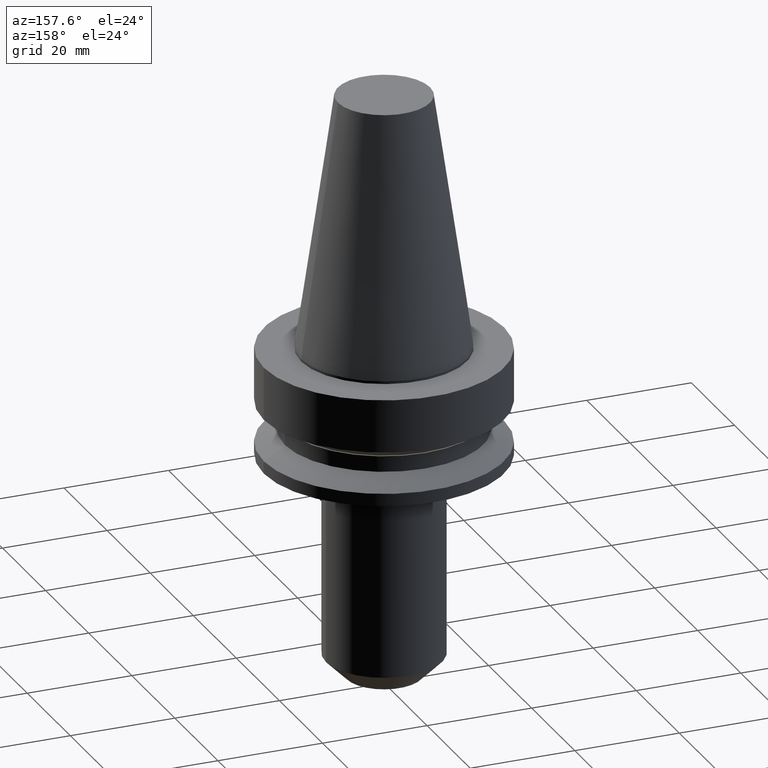
[diagram: clean part render]
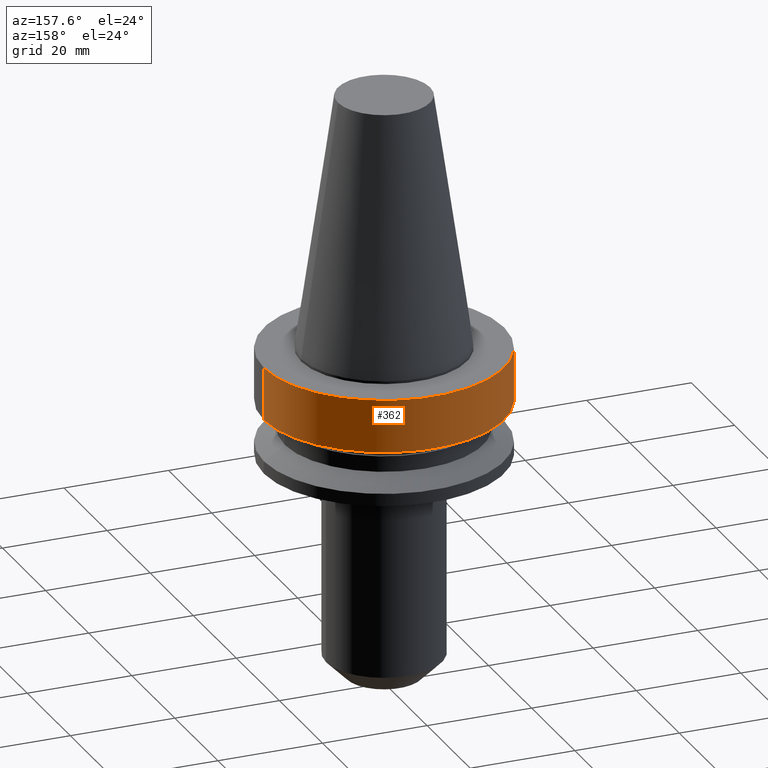
[diagram: same view with one face highlighted and labeled with its STEP entity id]
A machine part, auxiliary view. The second image highlights one B-rep face of the part: STEP entity #362.
In plain terms, the highlighted cylindrical surface (partial cylindrical patch) has radius 23 mm, axis along (-0, -0, 1).
Its self-contained STEP definition (entity closure, byte-faithful):
#5 = CARTESIAN_POINT ( 'NONE',  ( 23.00000000000000711, 0.000000000000000000, -10.60014200631680126 ) ) ;
#24 = CIRCLE ( 'NONE', #332, 23.00000000000000000 ) ;
#41 = DIRECTION ( 'NONE',  ( -0.000000000000000000, -0.000000000000000000, 1.000000000000000000 ) ) ;
#84 = CARTESIAN_POINT ( 'NONE',  ( 0.000000000000000000, 0.000000000000000000, 48.39999999999998437 ) ) ;
#85 = VERTEX_POINT ( 'NONE', #775 ) ;
#91 = CARTESIAN_POINT ( 'NONE',  ( -23.00000000000000355, 2.816687638038912746E-15, 48.39999999999998437 ) ) ;
#93 = LINE ( 'NONE', #212, #174 ) ;
#117 = CARTESIAN_POINT ( 'NONE',  ( -23.00000000000000000, 2.816687638038912746E-15, -0.5000000000000004441 ) ) ;
#156 = FACE_OUTER_BOUND ( 'NONE', #411, .T. ) ;
#174 = VECTOR ( 'NONE', #692, 1000.000000000000000 ) ;
#212 = CARTESIAN_POINT ( 'NONE',  ( 23.00000000000000355, 0.000000000000000000, 48.39999999999998437 ) ) ;
#214 = VERTEX_POINT ( 'NONE', #5 ) ;
#251 = ORIENTED_EDGE ( 'NONE', *, *, #772, .F. ) ;
#262 = CARTESIAN_POINT ( 'NONE',  ( 0.000000000000000000, 0.000000000000000000, -0.5000000000000004441 ) ) ;
#266 = ORIENTED_EDGE ( 'NONE', *, *, #572, .T. ) ;
#268 = DIRECTION ( 'NONE',  ( -0.000000000000000000, -0.000000000000000000, 1.000000000000000000 ) ) ;
#275 = DIRECTION ( 'NONE',  ( 1.000000000000000000, 0.000000000000000000, 0.000000000000000000 ) ) ;
#281 = EDGE_CURVE ( 'NONE', #85, #573, #320, .T. ) ;
#314 = CIRCLE ( 'NONE', #474, 23.00000000000000711 ) ;
#320 = LINE ( 'NONE', #91, #570 ) ;
#322 = EDGE_CURVE ( 'NONE', #524, #573, #24, .T. ) ;
#331 = DIRECTION ( 'NONE',  ( 1.000000000000000000, 0.000000000000000000, 0.000000000000000000 ) ) ;
#332 = AXIS2_PLACEMENT_3D ( 'NONE', #262, #686, #747 ) ;
#352 = CARTESIAN_POINT ( 'NONE',  ( 0.000000000000000000, 0.000000000000000000, -10.60014200631680126 ) ) ;
#362 = ADVANCED_FACE ( 'NONE', ( #156 ), #627, .T. ) ;
#404 = CARTESIAN_POINT ( 'NONE',  ( 23.00000000000000000, 0.000000000000000000, -0.5000000000000004441 ) ) ;
#411 = EDGE_LOOP ( 'NONE', ( #266, #545, #652, #251 ) ) ;
#474 = AXIS2_PLACEMENT_3D ( 'NONE', #352, #41, #275 ) ;
#524 = VERTEX_POINT ( 'NONE', #404 ) ;
#545 = ORIENTED_EDGE ( 'NONE', *, *, #281, .T. ) ;
#570 = VECTOR ( 'NONE', #268, 1000.000000000000000 ) ;
#572 = EDGE_CURVE ( 'NONE', #214, #85, #314, .T. ) ;
#573 = VERTEX_POINT ( 'NONE', #117 ) ;
#627 = CYLINDRICAL_SURFACE ( 'NONE', #658, 23.00000000000000355 ) ;
#652 = ORIENTED_EDGE ( 'NONE', *, *, #322, .F. ) ;
#658 = AXIS2_PLACEMENT_3D ( 'NONE', #84, #681, #331 ) ;
#681 = DIRECTION ( 'NONE',  ( -0.000000000000000000, -0.000000000000000000, 1.000000000000000000 ) ) ;
#686 = DIRECTION ( 'NONE',  ( -0.000000000000000000, -0.000000000000000000, 1.000000000000000000 ) ) ;
#692 = DIRECTION ( 'NONE',  ( -0.000000000000000000, -0.000000000000000000, 1.000000000000000000 ) ) ;
#747 = DIRECTION ( 'NONE',  ( 1.000000000000000000, 0.000000000000000000, 0.000000000000000000 ) ) ;
#772 = EDGE_CURVE ( 'NONE', #214, #524, #93, .T. ) ;
#775 = CARTESIAN_POINT ( 'NONE',  ( -23.00000000000000711, 2.816687638038913141E-15, -10.60014200631680126 ) ) ;